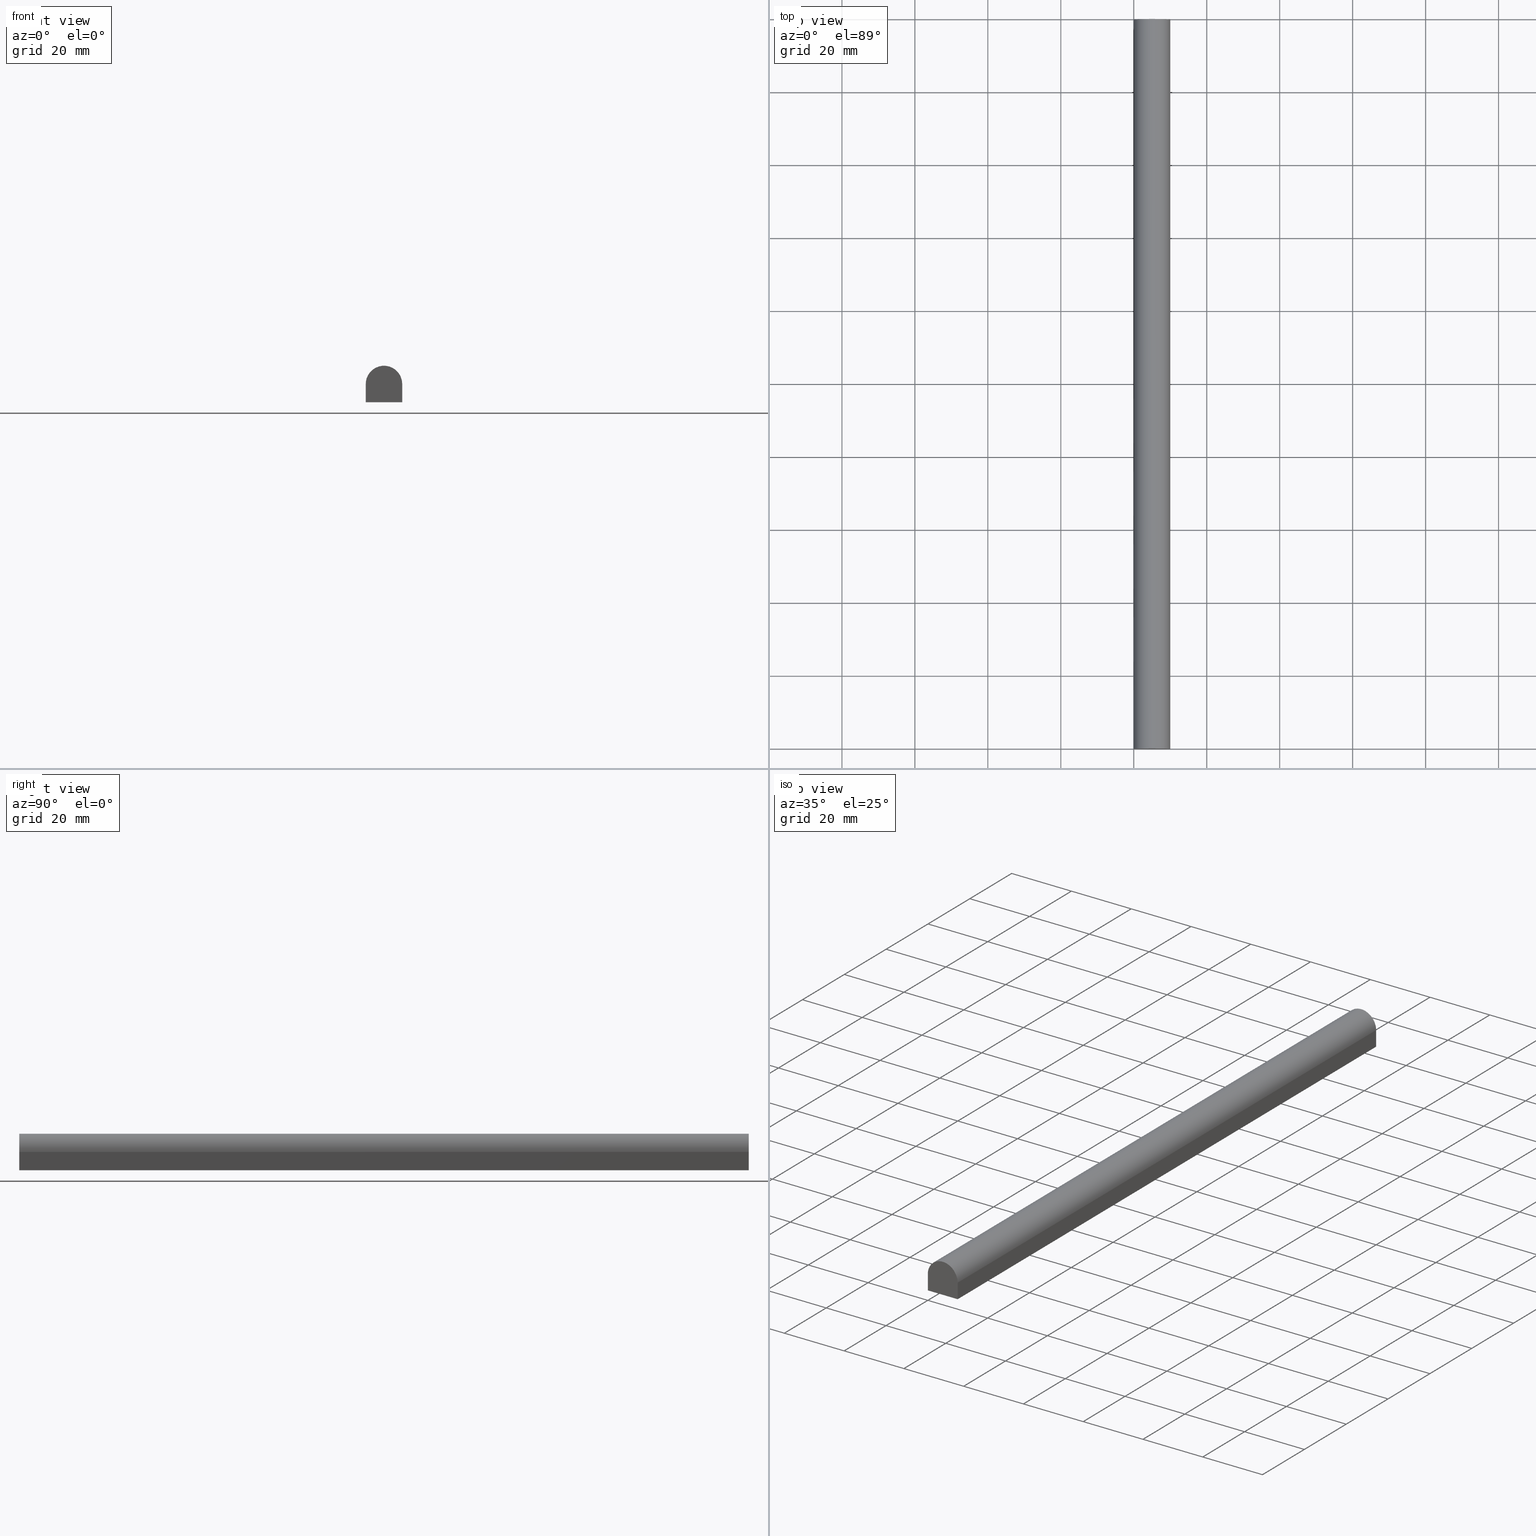
[diagram: canonical four-view strip — front | top / right | iso, engineering-drawing reading convention]
A machine part, canonical four-view strip (front | top / right | iso — engineering-drawing reading convention). The complete STEP part file that produces these views, byte-faithful:
ISO-10303-21;
HEADER;
/****************************************************************
 * Generated by software with PDE/Lib inside                    *
 * PDElib Version 4.4.1-0003, patched  Thursday August 19 11:58 *
 * International Technegroup Inc. (www.iti-oh.com)              *
 ****************************************************************/
FILE_DESCRIPTION((''),'2;1');
FILE_NAME('','2005-12-15T09:57:47',(''),(''),'','CADfix','');
FILE_SCHEMA(('AUTOMOTIVE_DESIGN'));
ENDSEC;
DATA;
#5=APPLICATION_CONTEXT('automotive design');
#6=APPLICATION_PROTOCOL_DEFINITION('Draft International Standard','automotive_design',1998,#5);
#7=PRODUCT_CONTEXT('None',#5,'mechanical');
#8=PRODUCT('rubber foam','','None',(#7));
#9=PRODUCT_RELATED_PRODUCT_CATEGORY('part','description',(#8));
#10=PRODUCT_DEFINITION_FORMATION('None','None',#8);
#11=PRODUCT_DEFINITION_CONTEXT('part definition',#5,'design');
#12=PRODUCT_DEFINITION('None','None',#10,#11);
#18=(NAMED_UNIT(*)PLANE_ANGLE_UNIT()SI_UNIT($,.RADIAN.));
#19=DIMENSIONAL_EXPONENTS(0.0,0.0,0.0,0.0,0.0,0.0,0.0);
#20=PLANE_ANGLE_MEASURE_WITH_UNIT(PLANE_ANGLE_MEASURE(0.017453292500000),#18);
#24=(CONVERSION_BASED_UNIT('DEGREE',#20)NAMED_UNIT(#19)PLANE_ANGLE_UNIT());
#28=(NAMED_UNIT(*)SI_UNIT($,.STERADIAN.)SOLID_ANGLE_UNIT());
#32=(LENGTH_UNIT()NAMED_UNIT(*)SI_UNIT(.MILLI.,.METRE.));
#34=UNCERTAINTY_MEASURE_WITH_UNIT(LENGTH_MEASURE(0.001000000000000),#32,'DISTANCE_ACCURACY_VALUE','');
#36=(GEOMETRIC_REPRESENTATION_CONTEXT(3)GLOBAL_UNCERTAINTY_ASSIGNED_CONTEXT((#34))GLOBAL_UNIT_ASSIGNED_CONTEXT((#24,#28,#32))REPRESENTATION_CONTEXT('None','None'));
#37=AXIS2_PLACEMENT_3D('',#38,#39,#40);
#38=CARTESIAN_POINT('',(0.0,0.0,0.0));
#39=DIRECTION('',(0.0,0.0,1.0));
#40=DIRECTION('',(1.0,0.0,0.0));
#41=ADVANCED_BREP_SHAPE_REPRESENTATION('',(#37,#214),#36);
#42=PRODUCT_DEFINITION_SHAPE('','',#12);
#43=SHAPE_DEFINITION_REPRESENTATION(#42,#41);
#44=CARTESIAN_POINT('',(-0.499499980618060,0.0,10.499499980616500));
#45=CARTESIAN_POINT('',(10.499500248838959,0.0,10.499499980616500));
#46=CARTESIAN_POINT('',(-0.499499980618060,0.0,-0.499500248838886));
#47=CARTESIAN_POINT('',(10.499500248838959,0.0,-0.499500248838886));
#48=B_SPLINE_SURFACE_WITH_KNOTS('',1,1,((#44,#46),(#45,#47)),.UNSPECIFIED.,.F.,.F.,.U.,(2,2),(2,2),(0.0,10.999000229457019),(0.0,10.999000229455380),.UNSPECIFIED.);
#49=CARTESIAN_POINT('',(0.0,0.0,0.0));
#50=VERTEX_POINT('',#49);
#51=CARTESIAN_POINT('',(10.0,0.0,0.0));
#52=VERTEX_POINT('',#51);
#53=CARTESIAN_POINT('',(0.0,0.0,0.0));
#54=CARTESIAN_POINT('',(10.0,0.0,0.0));
#55=QUASI_UNIFORM_CURVE('',1,(#53,#54),.UNSPECIFIED.,.F.,.U.);
#56=EDGE_CURVE('',#50,#52,#55,.T.);
#57=ORIENTED_EDGE('',*,*,#56,.T.);
#58=CARTESIAN_POINT('',(10.0,0.0,5.0));
#59=VERTEX_POINT('',#58);
#60=CARTESIAN_POINT('',(10.0,0.0,0.0));
#61=CARTESIAN_POINT('',(10.0,0.0,5.0));
#62=QUASI_UNIFORM_CURVE('',1,(#60,#61),.UNSPECIFIED.,.F.,.U.);
#63=EDGE_CURVE('',#52,#59,#62,.T.);
#64=ORIENTED_EDGE('',*,*,#63,.T.);
#65=CARTESIAN_POINT('',(0.0,0.0,5.0));
#66=VERTEX_POINT('',#65);
#67=CARTESIAN_POINT('',(10.0,0.0,5.0));
#68=CARTESIAN_POINT('',(10.000000000000002,0.0,10.000000000000002));
#69=CARTESIAN_POINT('',(5.0,0.0,10.0));
#70=CARTESIAN_POINT('',(0.0,0.0,10.000000000000002));
#71=CARTESIAN_POINT('',(0.0,0.0,5.0));
#79=(BOUNDED_CURVE()B_SPLINE_CURVE(2,(#67,#68,#69,#70,#71),.UNSPECIFIED.,.F.,.U.)B_SPLINE_CURVE_WITH_KNOTS((3,2,3),(0.0,0.500000000000000,1.0),.UNSPECIFIED.)CURVE()GEOMETRIC_REPRESENTATION_ITEM()RATIONAL_B_SPLINE_CURVE((1.0,0.707106781186548,1.0,0.707106781186548,1.0))REPRESENTATION_ITEM(''));
#80=EDGE_CURVE('',#59,#66,#79,.T.);
#81=ORIENTED_EDGE('',*,*,#80,.T.);
#82=CARTESIAN_POINT('',(0.0,0.0,5.0));
#83=CARTESIAN_POINT('',(0.0,0.0,0.0));
#84=QUASI_UNIFORM_CURVE('',1,(#82,#83),.UNSPECIFIED.,.F.,.U.);
#85=EDGE_CURVE('',#66,#50,#84,.T.);
#86=ORIENTED_EDGE('',*,*,#85,.T.);
#87=EDGE_LOOP('',(#57,#64,#81,#86));
#88=FACE_OUTER_BOUND('',#87,.T.);
#89=ADVANCED_FACE('',(#88),#48,.F.);
#90=CARTESIAN_POINT('',(-0.499499980618060,200.0,10.499499980616500));
#91=CARTESIAN_POINT('',(10.499500248838959,200.0,10.499499980616500));
#92=CARTESIAN_POINT('',(-0.499499980618060,200.0,-0.499500248838886));
#93=CARTESIAN_POINT('',(10.499500248838959,200.0,-0.499500248838886));
#94=B_SPLINE_SURFACE_WITH_KNOTS('',1,1,((#90,#92),(#91,#93)),.UNSPECIFIED.,.F.,.F.,.U.,(2,2),(2,2),(0.0,10.999000229457019),(0.0,10.999000229455380),.UNSPECIFIED.);
#95=CARTESIAN_POINT('',(0.0,200.0,0.0));
#96=VERTEX_POINT('',#95);
#97=CARTESIAN_POINT('',(10.0,200.0,0.0));
#98=VERTEX_POINT('',#97);
#99=CARTESIAN_POINT('',(0.0,200.0,0.0));
#100=CARTESIAN_POINT('',(10.0,200.0,0.0));
#101=QUASI_UNIFORM_CURVE('',1,(#99,#100),.UNSPECIFIED.,.F.,.U.);
#102=EDGE_CURVE('',#96,#98,#101,.T.);
#103=ORIENTED_EDGE('',*,*,#102,.F.);
#104=CARTESIAN_POINT('',(0.0,200.0,5.0));
#105=VERTEX_POINT('',#104);
#106=CARTESIAN_POINT('',(0.0,200.0,5.0));
#107=CARTESIAN_POINT('',(0.0,200.0,0.0));
#108=QUASI_UNIFORM_CURVE('',1,(#106,#107),.UNSPECIFIED.,.F.,.U.);
#109=EDGE_CURVE('',#105,#96,#108,.T.);
#110=ORIENTED_EDGE('',*,*,#109,.F.);
#111=CARTESIAN_POINT('',(10.0,200.0,5.0));
#112=VERTEX_POINT('',#111);
#113=CARTESIAN_POINT('',(10.0,200.0,5.0));
#114=CARTESIAN_POINT('',(10.000000000000002,200.0,10.000000000000002));
#115=CARTESIAN_POINT('',(5.0,200.0,10.0));
#116=CARTESIAN_POINT('',(0.0,200.0,10.000000000000002));
#117=CARTESIAN_POINT('',(0.0,200.0,5.0));
#125=(BOUNDED_CURVE()B_SPLINE_CURVE(2,(#113,#114,#115,#116,#117),.UNSPECIFIED.,.F.,.U.)B_SPLINE_CURVE_WITH_KNOTS((3,2,3),(0.0,0.500000000000000,1.0),.UNSPECIFIED.)CURVE()GEOMETRIC_REPRESENTATION_ITEM()RATIONAL_B_SPLINE_CURVE((1.0,0.707106781186548,1.0,0.707106781186548,1.0))REPRESENTATION_ITEM(''));
#126=EDGE_CURVE('',#112,#105,#125,.T.);
#127=ORIENTED_EDGE('',*,*,#126,.F.);
#128=CARTESIAN_POINT('',(10.0,200.0,0.0));
#129=CARTESIAN_POINT('',(10.0,200.0,5.0));
#130=QUASI_UNIFORM_CURVE('',1,(#128,#129),.UNSPECIFIED.,.F.,.U.);
#131=EDGE_CURVE('',#98,#112,#130,.T.);
#132=ORIENTED_EDGE('',*,*,#131,.F.);
#133=EDGE_LOOP('',(#103,#110,#127,#132));
#134=FACE_OUTER_BOUND('',#133,.T.);
#135=ADVANCED_FACE('',(#134),#94,.T.);
#136=CARTESIAN_POINT('',(0.0,-9.989999612361171,-0.249749990309030));
#137=CARTESIAN_POINT('',(0.0,-9.989999612361171,5.249750124419480));
#138=CARTESIAN_POINT('',(0.0,209.990004976779200,-0.249749990309030));
#139=CARTESIAN_POINT('',(0.0,209.990004976779200,5.249750124419480));
#140=B_SPLINE_SURFACE_WITH_KNOTS('',1,1,((#136,#138),(#137,#139)),.UNSPECIFIED.,.F.,.F.,.U.,(2,2),(2,2),(0.0,5.499500114728509),(0.0,219.980004589140410),.UNSPECIFIED.);
#141=ORIENTED_EDGE('',*,*,#85,.F.);
#142=CARTESIAN_POINT('',(0.0,200.0,5.0));
#143=CARTESIAN_POINT('',(0.0,0.0,5.0));
#144=QUASI_UNIFORM_CURVE('',1,(#142,#143),.UNSPECIFIED.,.F.,.U.);
#145=EDGE_CURVE('',#105,#66,#144,.T.);
#146=ORIENTED_EDGE('',*,*,#145,.F.);
#147=ORIENTED_EDGE('',*,*,#109,.T.);
#148=CARTESIAN_POINT('',(0.0,200.0,0.0));
#149=CARTESIAN_POINT('',(0.0,0.0,0.0));
#150=QUASI_UNIFORM_CURVE('',1,(#148,#149),.UNSPECIFIED.,.F.,.U.);
#151=EDGE_CURVE('',#96,#50,#150,.T.);
#152=ORIENTED_EDGE('',*,*,#151,.T.);
#153=EDGE_LOOP('',(#141,#146,#147,#152));
#154=FACE_OUTER_BOUND('',#153,.T.);
#155=ADVANCED_FACE('',(#154),#140,.T.);
#156=CARTESIAN_POINT('',(0.001713375122216,205.0,4.869115258460627));
#157=CARTESIAN_POINT('',(0.001713375122216,-5.125000000000000,4.869115258460627));
#158=CARTESIAN_POINT('',(-0.136210364214512,205.000000000000030,10.136210364214495));
#159=CARTESIAN_POINT('',(-0.136210364214512,-5.124999999999999,10.136210364214495));
#160=CARTESIAN_POINT('',(5.130884741539358,205.0,9.998286624877785));
#161=CARTESIAN_POINT('',(5.130884741539358,-5.125000000000000,9.998286624877785));
#162=CARTESIAN_POINT('',(10.397979847293229,205.000000000000030,9.860362885541074));
#163=CARTESIAN_POINT('',(10.397979847293229,-5.124999999999999,9.860362885541074));
#164=CARTESIAN_POINT('',(9.984586668665639,205.0,4.607704521360784));
#165=CARTESIAN_POINT('',(9.984586668665639,-5.125000000000000,4.607704521360784));
#173=(BOUNDED_SURFACE()B_SPLINE_SURFACE(1,2,((#156,#158,#160,#162,#164),(#157,#159,#161,#163,#165)),.UNSPECIFIED.,.F.,.F.,.U.)B_SPLINE_SURFACE_WITH_KNOTS((2,2),(3,2,3),(0.0,210.125000000000110),(0.0,8.592678119336719,17.185356238673439),.UNSPECIFIED.)GEOMETRIC_REPRESENTATION_ITEM()RATIONAL_B_SPLINE_SURFACE(((1.0,0.688354575693754,1.0,0.688354575693754,1.0),(1.0,0.688354575693754,1.0,0.688354575693754,1.0)))REPRESENTATION_ITEM('')SURFACE());
#174=ORIENTED_EDGE('',*,*,#80,.F.);
#175=CARTESIAN_POINT('',(10.0,200.0,5.0));
#176=CARTESIAN_POINT('',(10.0,0.0,5.0));
#177=QUASI_UNIFORM_CURVE('',1,(#175,#176),.UNSPECIFIED.,.F.,.U.);
#178=EDGE_CURVE('',#112,#59,#177,.T.);
#179=ORIENTED_EDGE('',*,*,#178,.F.);
#180=ORIENTED_EDGE('',*,*,#126,.T.);
#181=ORIENTED_EDGE('',*,*,#145,.T.);
#182=EDGE_LOOP('',(#174,#179,#180,#181));
#183=FACE_OUTER_BOUND('',#182,.T.);
#184=ADVANCED_FACE('',(#183),#173,.T.);
#185=CARTESIAN_POINT('',(10.0,-9.989999612361194,5.249749990309030));
#186=CARTESIAN_POINT('',(10.0,-9.989999612361194,-0.249750124419481));
#187=CARTESIAN_POINT('',(10.0,209.990004976779200,5.249749990309030));
#188=CARTESIAN_POINT('',(10.0,209.990004976779200,-0.249750124419481));
#189=B_SPLINE_SURFACE_WITH_KNOTS('',1,1,((#185,#187),(#186,#188)),.UNSPECIFIED.,.F.,.F.,.U.,(2,2),(2,2),(0.0,5.499500114728511),(0.0,219.980004589140410),.UNSPECIFIED.);
#190=ORIENTED_EDGE('',*,*,#63,.F.);
#191=CARTESIAN_POINT('',(10.0,200.0,0.0));
#192=CARTESIAN_POINT('',(10.0,0.0,0.0));
#193=QUASI_UNIFORM_CURVE('',1,(#191,#192),.UNSPECIFIED.,.F.,.U.);
#194=EDGE_CURVE('',#98,#52,#193,.T.);
#195=ORIENTED_EDGE('',*,*,#194,.F.);
#196=ORIENTED_EDGE('',*,*,#131,.T.);
#197=ORIENTED_EDGE('',*,*,#178,.T.);
#198=EDGE_LOOP('',(#190,#195,#196,#197));
#199=FACE_OUTER_BOUND('',#198,.T.);
#200=ADVANCED_FACE('',(#199),#189,.T.);
#201=CARTESIAN_POINT('',(10.499499980618060,-9.989999612361194,0.0));
#202=CARTESIAN_POINT('',(-0.499500248838961,-9.989999612361194,0.0));
#203=CARTESIAN_POINT('',(10.499499980618060,209.990004976779200,0.0));
#204=CARTESIAN_POINT('',(-0.499500248838961,209.990004976779200,0.0));
#205=B_SPLINE_SURFACE_WITH_KNOTS('',1,1,((#201,#203),(#202,#204)),.UNSPECIFIED.,.F.,.F.,.U.,(2,2),(2,2),(0.0,10.999000229457019),(0.0,219.980004589140410),.UNSPECIFIED.);
#206=ORIENTED_EDGE('',*,*,#56,.F.);
#207=ORIENTED_EDGE('',*,*,#151,.F.);
#208=ORIENTED_EDGE('',*,*,#102,.T.);
#209=ORIENTED_EDGE('',*,*,#194,.T.);
#210=EDGE_LOOP('',(#206,#207,#208,#209));
#211=FACE_OUTER_BOUND('',#210,.T.);
#212=ADVANCED_FACE('',(#211),#205,.T.);
#213=CLOSED_SHELL('',(#89,#135,#155,#184,#200,#212));
#214=MANIFOLD_SOLID_BREP('rubber foam',#213);
#220=(NAMED_UNIT(*)PLANE_ANGLE_UNIT()SI_UNIT($,.RADIAN.));
#221=DIMENSIONAL_EXPONENTS(0.0,0.0,0.0,0.0,0.0,0.0,0.0);
#222=PLANE_ANGLE_MEASURE_WITH_UNIT(PLANE_ANGLE_MEASURE(0.017453292500000),#220);
#226=(CONVERSION_BASED_UNIT('DEGREE',#222)NAMED_UNIT(#221)PLANE_ANGLE_UNIT());
#230=(NAMED_UNIT(*)SI_UNIT($,.STERADIAN.)SOLID_ANGLE_UNIT());
#234=(LENGTH_UNIT()NAMED_UNIT(*)SI_UNIT(.MILLI.,.METRE.));
#236=UNCERTAINTY_MEASURE_WITH_UNIT(LENGTH_MEASURE(0.001000000000000),#234,'DISTANCE_ACCURACY_VALUE','');
#238=(GEOMETRIC_REPRESENTATION_CONTEXT(3)GLOBAL_UNCERTAINTY_ASSIGNED_CONTEXT((#236))GLOBAL_UNIT_ASSIGNED_CONTEXT((#226,#230,#234))REPRESENTATION_CONTEXT('','3D'));
ENDSEC;
END-ISO-10303-21;
